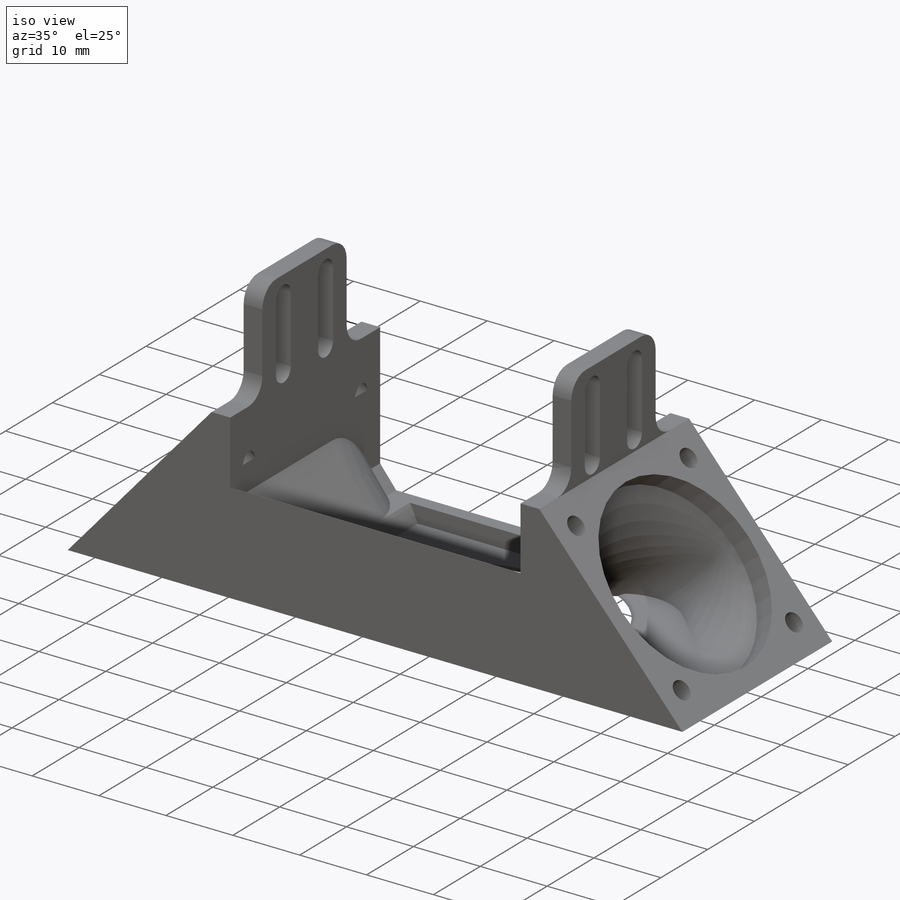
[diagram: iso view]
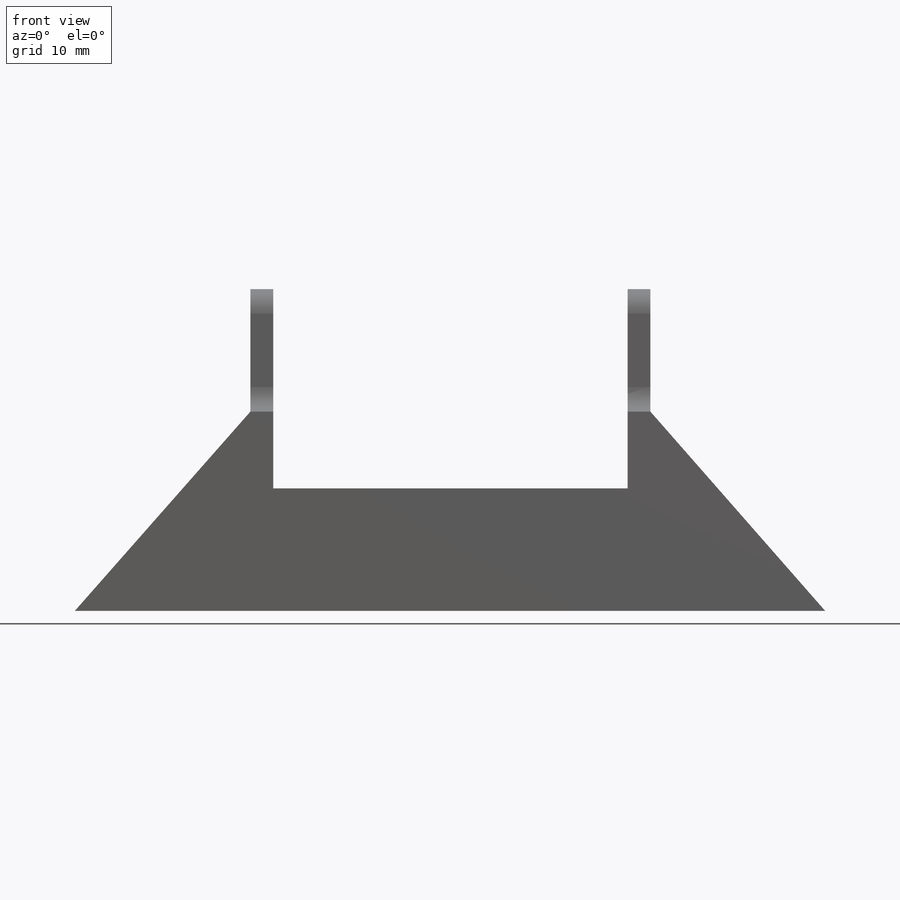
[diagram: front view]
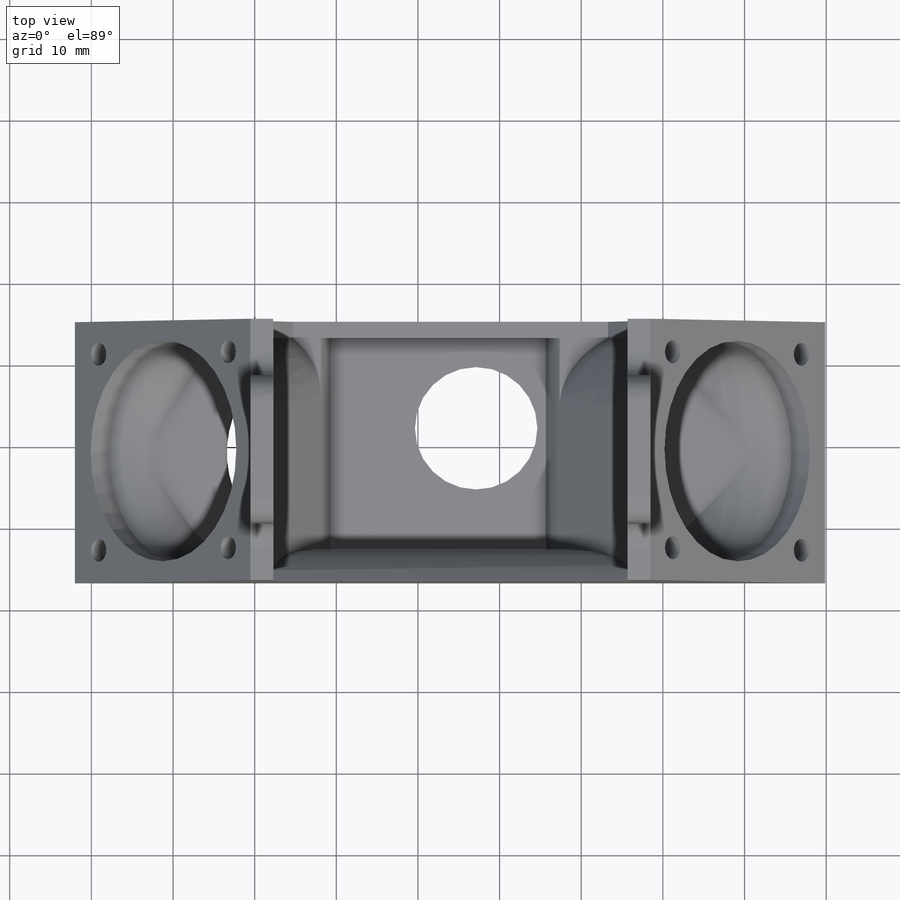
[diagram: top view]
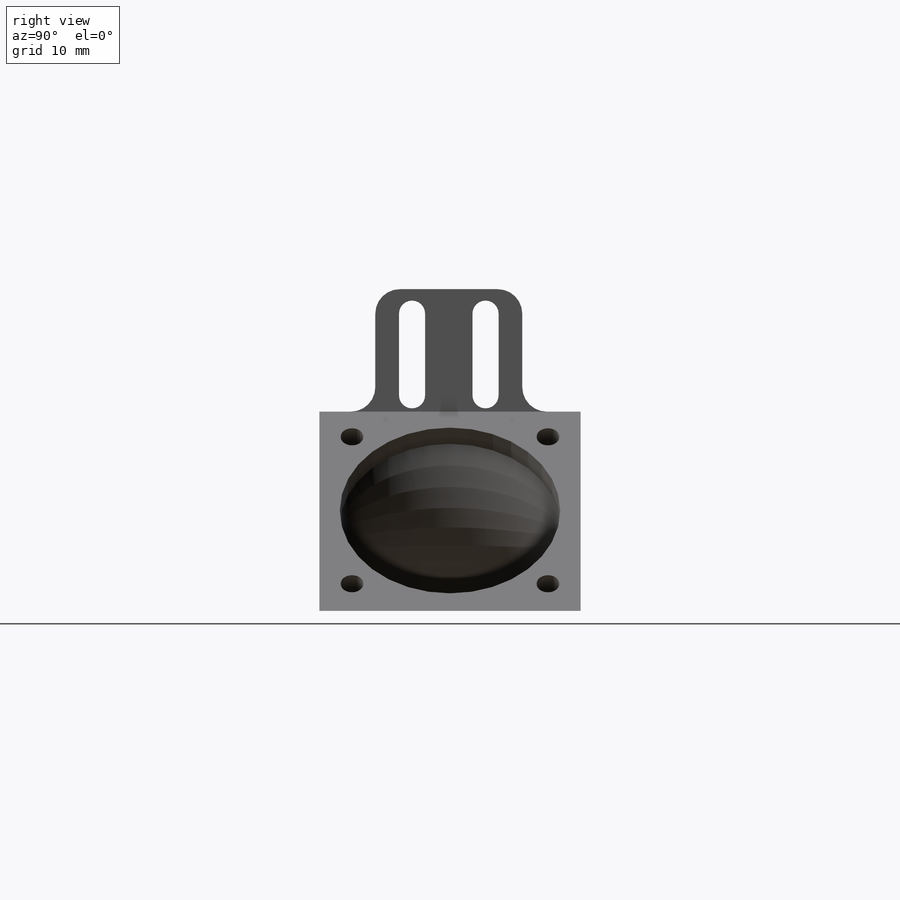
[diagram: right view]
SOLIDWORKS PART (.sldprt)
format: sldprt  version: not decoded by parser v0  size: 1,004,032 bytes
history: native  units: mm
features: sketch x38, extrude x13, cut_extrude x12, fillet x6, material x1 (+11 scaffold rows collapsed)
feature tree (81):
  scaffold x11  (default folders/planes/origin — collapsed)
  material  "Material <not specified>"
  sketch  "Sketch1"  dims[D5=~11.666654mm D1=32.0mm D2=43.0mm D3=24.65mm D4=16.0mm]
  sketch  "Sketch2"
  extrude  "Boss-Extrude1"  Depth=1mm
  sketch  "Sketch3"  dims[D1=24.4mm D2=24.5mm D3=24.4mm D4=24.4mm D5=3.0mm D6=3.0mm]
  extrude  "Boss-Extrude2"  Depth=32mm
  sketch  "Sketch4"  dims[D3=~10.011565mm D1=16.0mm D2=16.11mm]
  sketch  "Sketch5"  dims[D3=~10.657598mm D1=16.0mm D2=16.11mm]
  sketch  "Sketch7"  dims[D1=0.2mm D2=0.2mm]
  cut_extrude  "Cut-Extrude1"  Depth=23.4mm
  sketch  "Sketch8"  dims[D1=4.0mm]
  extrude  "Boss-Extrude3"  Depth=14mm
  sketch  "Sketch9"  dims[D5=~1.873592mm D1=4.11mm D2=4.0mm D3=4.0mm D4=4.41mm]
  cut_extrude  "Cut-Extrude2"  Depth=7mm
  sketch  "Sketch10"  dims[D1=~13.645153mm]
  cut_extrude  "Cut-Extrude3"  Depth=3mm
  sketch  "Sketch11"  dims[D5=~2.094311mm D1=4.11mm D2=4.0mm D3=4.0mm D4=4.41mm]
  cut_extrude  "Cut-Extrude4"  Depth=7mm
  sketch  "Sketch12"  dims[D1=~9.418526mm]
  cut_extrude  "Cut-Extrude5"  Depth=3mm
  sketch  "Sketch13"  dims[D1=15.0mm D2=7.0mm D3=8.0mm D4=16.0mm]
  sketch  "Sketch14"  dims[D1=~2.728342mm]
  sketch  "Sketch15"  dims[D1=3.0mm]
  sketch  "Sketch19"  dims[D1=12.0mm]
  sketch  "Sketch20"  dims[D1=5.0mm D2=4.0mm]
  sketch  "Sketch21"
  extrude  "Boss-Extrude6"  Depth=29mm
  sketch  "Sketch22"
  sketch  "Sketch23"  dims[D1=12.0mm]
  sketch  "Sketch24"  dims[D1=4.0mm D2=5.0mm]
  sketch  "Sketch25"
  extrude  "Boss-Extrude7"  Depth=29mm
  sketch  "Sketch26"  dims[D1=2.0mm]
  extrude  "Boss-Extrude8"  Depth=2mm
  sketch  "Sketch27"
  extrude  "Boss-Extrude9"  Depth=3mm
  sketch  "Sketch28"
  cut_extrude  "Cut-Extrude13"  Depth=3mm
  sketch  "Sketch29"  dims[D1=18.0mm]
  extrude  "Boss-Extrude10"  Depth=15mm
  sketch  "Sketch30"  dims[D3=~1.308388mm D1=3.0mm D2=2.0mm]
  sketch  "Sketch32"  dims[D1=18.0mm]
  extrude  "Boss-Extrude11"  Depth=15mm
  sketch  "Sketch33"  dims[D3=~1.305511mm D1=3.0mm D2=2.0mm]
  cut_extrude  "Cut-Extrude14"  Depth=52mm
  fillet  "Fillet7"  Radius=3mm
  sketch  "Sketch34"  dims[D1=~11.350744mm D2=16.4mm D3=9.0mm]
  sketch  "Sketch35"  dims[D1=~6.393359mm]
  extrude  "Boss-Extrude12"  Depth=1mm
  sketch  "Sketch36"  dims[D1=6.0mm D2=3.0mm]
  sketch  "Sketch37"  dims[D1=13.0mm]
  extrude  "Boss-Extrude13"  Depth=12mm
  sketch  "Sketch38"
  cut_extrude  "Cut-Extrude16"  Depth=26mm
  cut_extrude  "Cut-Extrude17"  Depth=26mm
  sketch  "Sketch39"  dims[D1=6.5mm]
  cut_extrude  "Cut-Extrude18"  Depth=26mm
  sketch  "Sketch40"
  extrude  "Boss-Extrude14"  Depth=0.5mm
  fillet  "Fillet8"  Radius=17mm
  fillet  "Fillet13"  Radius=10mm
  fillet  "Fillet14"  Radius=10mm
  fillet  "Fillet18"  Radius=1mm
  sketch  "Sketch41"
  cut_extrude  "Cut-Extrude19"  Depth=0.5mm
  fillet  "Fillet19"  Radius=10mm
  sketch  "Sketch44"  dims[D1=3.0mm]
  sketch  "Sketch45"
  extrude  "Boss-Extrude15"  Depth=0.5mm
  cut_extrude  "Cut-Extrude20"  Depth=0.5mm
decode coverage: 59 of 69 modeling features carry decoded parameters
note: ~ marks probable driven/reference dimensions
note: suppression state not decoded; provenance and decode notes live in map.json
